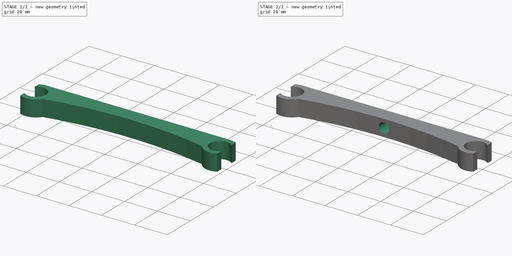
[diagram: build sequence overview — one tinted view per stage of 2, left to right]
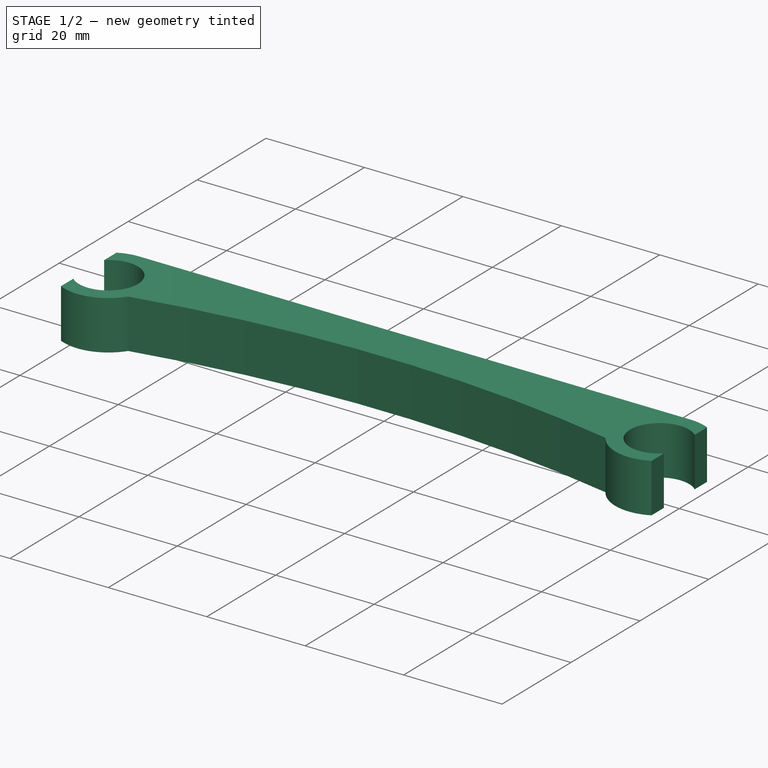
[diagram: stage 1 of 2 — iso view after this stage's code; geometry added in this stage tinted green]
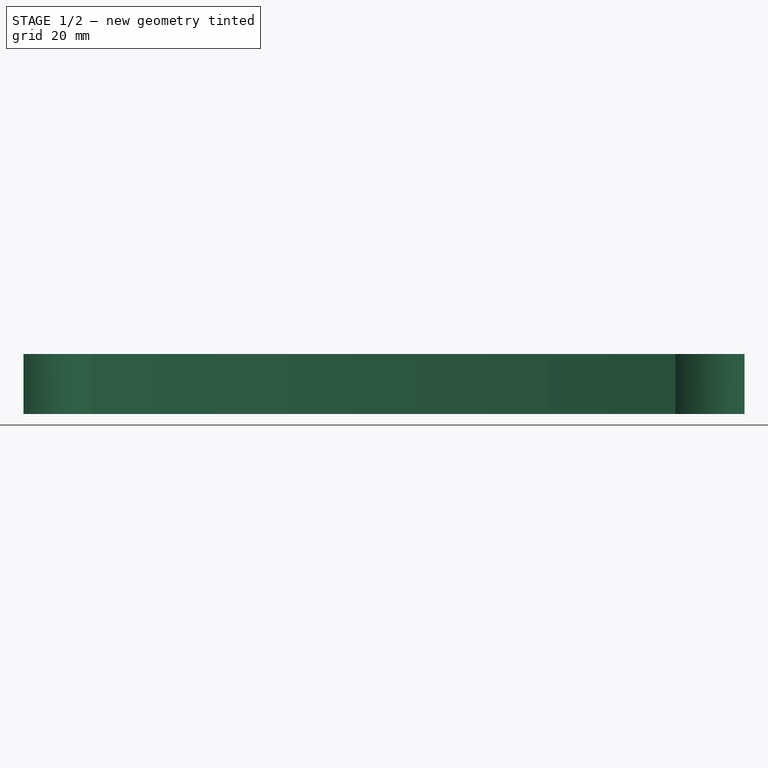
[diagram: stage 1 of 2 — front view after this stage's code; geometry added in this stage tinted green]
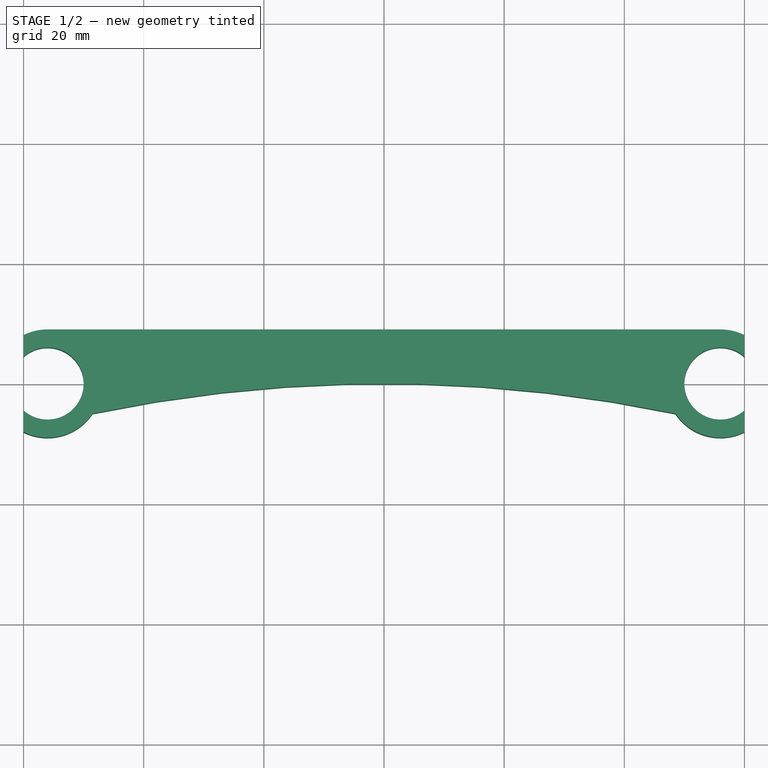
[diagram: stage 1 of 2 — top view after this stage's code; geometry added in this stage tinted green]
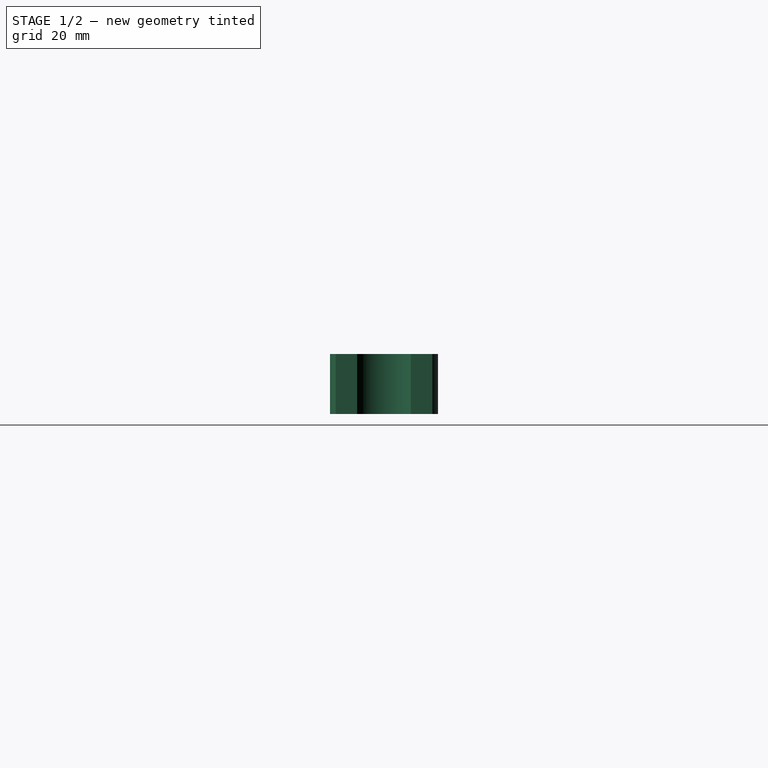
[diagram: stage 1 of 2 — right view after this stage's code; geometry added in this stage tinted green]
FCSTD DOCUMENT  (FreeCAD 2023.131R26244 +5365 (Git))
Label: Bike Thing
License: All rights reserved
LicenseURL: http://en.wikipedia.org/wiki/All_rights_reserved
objects: Sketcher::SketchObject×2, PartDesign::Pad×1, PartDesign::Pocket×1, PartDesign::Body×1
note: 11 computed .brp shape members not serialized (recipe doc carries the construction recipe); baked Part::Feature solids carry a one-line shape summary decoded from their .brp

FEATURE [Sketcher::SketchObject] Sketch
  ArcFitTolerance = 1e-06
  AttachmentSupport = -> [XY_Plane]
  ExternalBSplineMaxDegree = 5
  ExternalBSplineTolerance = 0.0001
  FullyConstrained = false
  InternalTolerance = 1e-06
  InvalidShape = false
  MakeInternals = false
  MapMode = 5
  Support = -> [XY_Plane]
  TreeRank = 11
  ValidateShape = true
  sketch-geometry (20):
    g0: ArcOfCircle CenterX=-56 CenterY=0 CenterZ=0 NormalX=0 NormalY=0 NormalZ=1 AngleXU=0 Radius=6 StartAngle=3.98266 EndAngle=8.58371
    g1: ArcOfCircle CenterX=56 CenterY=0 CenterZ=0 NormalX=0 NormalY=0 NormalZ=1 AngleXU=0 Radius=6 StartAngle=0.841069 EndAngle=5.44212
    g2: ArcOfCircle CenterX=-56 CenterY=0 CenterZ=0 NormalX=0 NormalY=0 NormalZ=1 AngleXU=0 Radius=9 StartAngle=1.55423 EndAngle=2.03135
    g3: ArcOfCircle CenterX=56 CenterY=0 CenterZ=0 NormalX=0 NormalY=0 NormalZ=1 AngleXU=0 Radius=9 StartAngle=3.73062 EndAngle=5.17294
    g4: LineSegment StartX=-55.8509 StartY=8.99877 StartZ=0 EndX=56.1491 EndY=8.99877 EndZ=0
    g5: ArcOfCircle CenterX=1.23e-14 CenterY=-237.887 CenterZ=0 NormalX=0 NormalY=0 NormalZ=1 AngleXU=0 Radius=237.887 StartAngle=1.36541 EndAngle=1.77619
    g6: GeomPoint [constr] X=-60 Y=-4.47214 Z=0
    g7: GeomPoint [constr] X=60 Y=-4.47214 Z=0
    g8: GeomPoint [constr] X=-60 Y=4.47214 Z=0
    g9: GeomPoint [constr] X=-60 Y=8.06226 Z=0
    g10: GeomPoint [constr] X=-60 Y=-8.06226 Z=0
    g11: LineSegment StartX=-60 StartY=8.06226 StartZ=0 EndX=-60 EndY=4.47214 EndZ=0
    g12: LineSegment StartX=-60 StartY=-4.47214 StartZ=0 EndX=-60 EndY=-8.06226 EndZ=0
    g13: ArcOfCircle CenterX=-56 CenterY=0 CenterZ=0 NormalX=0 NormalY=0 NormalZ=1 AngleXU=0 Radius=9 StartAngle=4.25183 EndAngle=5.69415
    g14: GeomPoint [constr] X=60 Y=-8.06226 Z=0
    g15: GeomPoint [constr] X=60 Y=4.47214 Z=0
    g16: GeomPoint [constr] X=60 Y=8.06226 Z=0
    g17: LineSegment StartX=60 StartY=8.06226 StartZ=0 EndX=60 EndY=4.47214 EndZ=0
    g18: LineSegment StartX=60 StartY=-4.47214 StartZ=0 EndX=60 EndY=-8.06226 EndZ=0
    g19: ArcOfCircle CenterX=56 CenterY=0 CenterZ=0 NormalX=0 NormalY=0 NormalZ=1 AngleXU=0 Radius=9 StartAngle=1.11024 EndAngle=1.55423
  constraints (50):
    c: PointOnObject(g0,g-1)
    c: PointOnObject(g1,g-1)
    c: Equal(g0,g1)
    c: Diameter(g0) = 12
    c: DistanceX(g0,g-1) = 56
    c: DistanceX(g-1,g1) = 56
    c: Coincident(g2,g0)
    c: Coincident(g3,g1)
    c: Equal(g2,g3)
    c: Diameter(g2) = 18
    c: Horizontal(g4)
    c: PointOnObject(g4,g3)
    c: PointOnObject(g-1,g5)
    c: DistanceY(g5,g-1) = 5
    c: DistanceY(g5,g-1) = 5
    c: PointOnObject(g9,g2)
    c: PointOnObject(g10,g2)
    c: DistanceX(g6,g-1) = 60
    c: DistanceX(g10,g-1) = 60
    c: DistanceX(g8,g-1) = 60
    c: DistanceX(g9,g-1) = 60
    c: Coincident(g11,g9)
    c: Coincident(g11,g8)
    c: Coincident(g12,g6)
    c: Coincident(g12,g10)
    c: Coincident(g13,g5)
    c: Equal(g2,g13)
    c: PointOnObject(g2,g11)
    c: PointOnObject(g13,g12)
    c: Coincident(g2,g13)
    c: Coincident(g0,g11)
    c: Coincident(g0,g12)
    c: PointOnObject(g14,g3)
    c: PointOnObject(g16,g3)
    c: DistanceX(g-1,g14) = 60
    c: DistanceX(g-1,g7) = 60
    c: DistanceX(g-1,g15) = 60
    c: DistanceX(g-1,g16) = 60
    c: Coincident(g17,g16)
    c: Coincident(g17,g15)
    c: Coincident(g18,g7)
    c: Coincident(g18,g14)
    c: Coincident(g3,g5)
    c: PointOnObject(g3,g18)
    c: PointOnObject(g19,g17)
    c: Coincident(g3,g19)
    c: Coincident(g1,g18)
    c: Coincident(g1,g17)
    c: Coincident(g2,g4)
    c: Coincident(g19,g4)
FEATURE [PartDesign::Pad] Pad
  AddSubType = 0
  AlongSketchNormal = false
  AutoTaperInnerAngle = true
  CheckUpToFaceLimits = true
  ClaimChildren = false
  Direction = (0,0,1)
  Fit = 0
  FitJoin = 0
  InnerFit = 0
  InnerFitJoin = 0
  InvalidShape = false
  Length = 10
  Length2 = 100
  Linearize = true
  NewSolid = false
  Profile = -> Sketch
  Suppress = false
  TaperInnerAngle = 0
  TaperInnerAngleRev = 0
  TreeRank = 12
  Type = 0
  ValidateShape = true
  _ProfileBasedVersion = 1
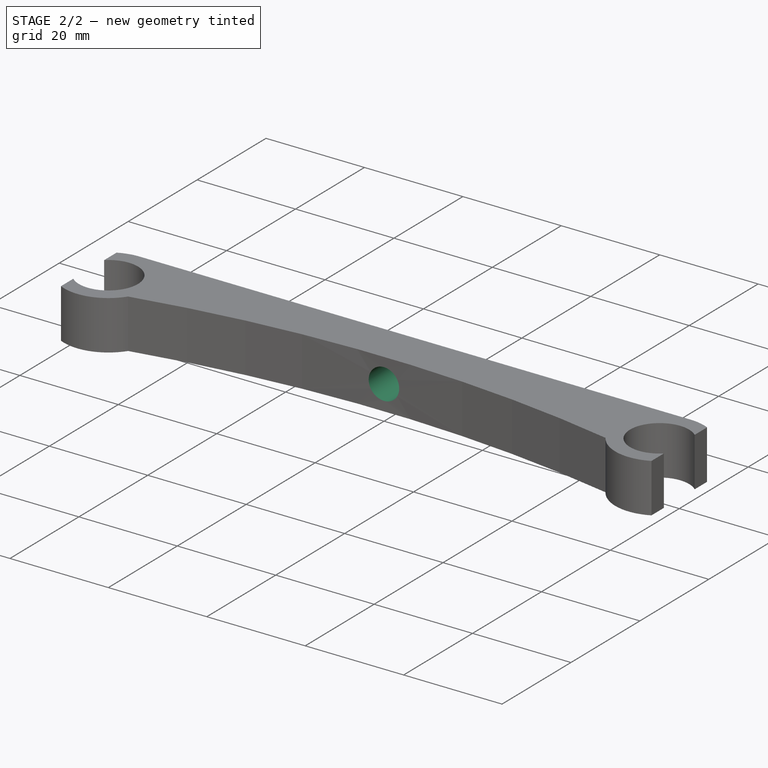
[diagram: stage 2 of 2 — iso view after this stage's code; geometry added in this stage tinted green]
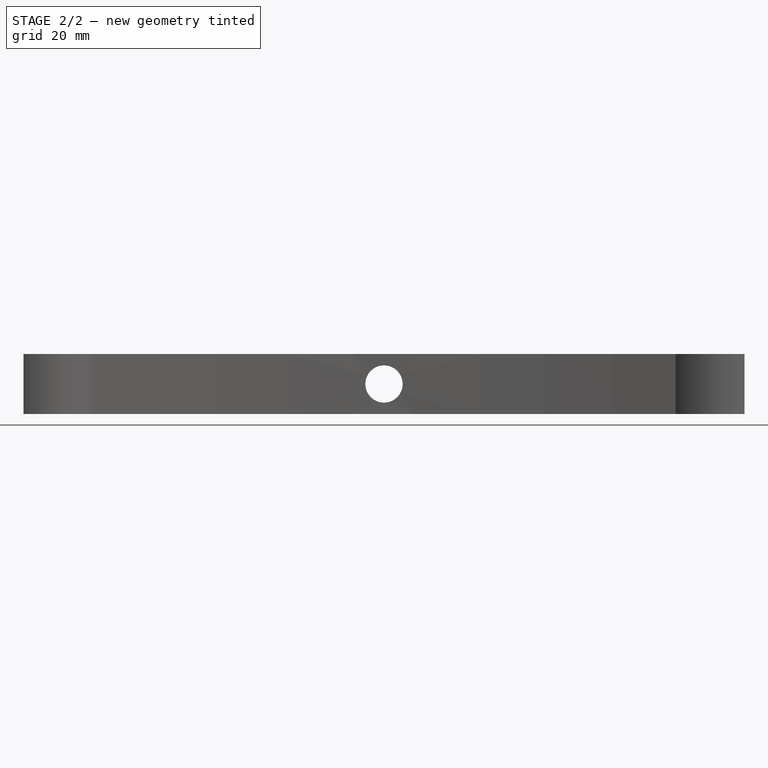
[diagram: stage 2 of 2 — front view after this stage's code; geometry added in this stage tinted green]
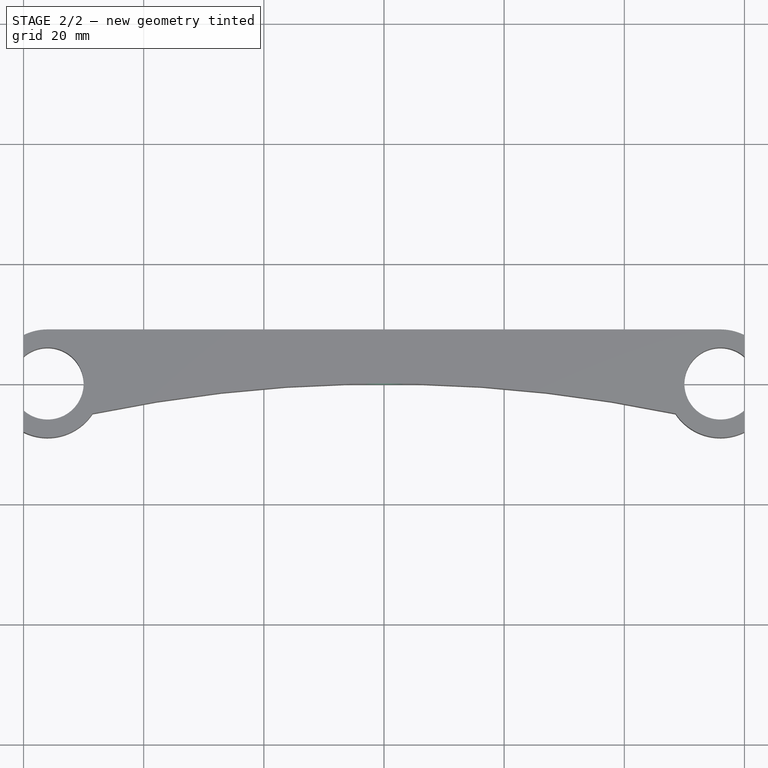
[diagram: stage 2 of 2 — top view after this stage's code; geometry added in this stage tinted green]
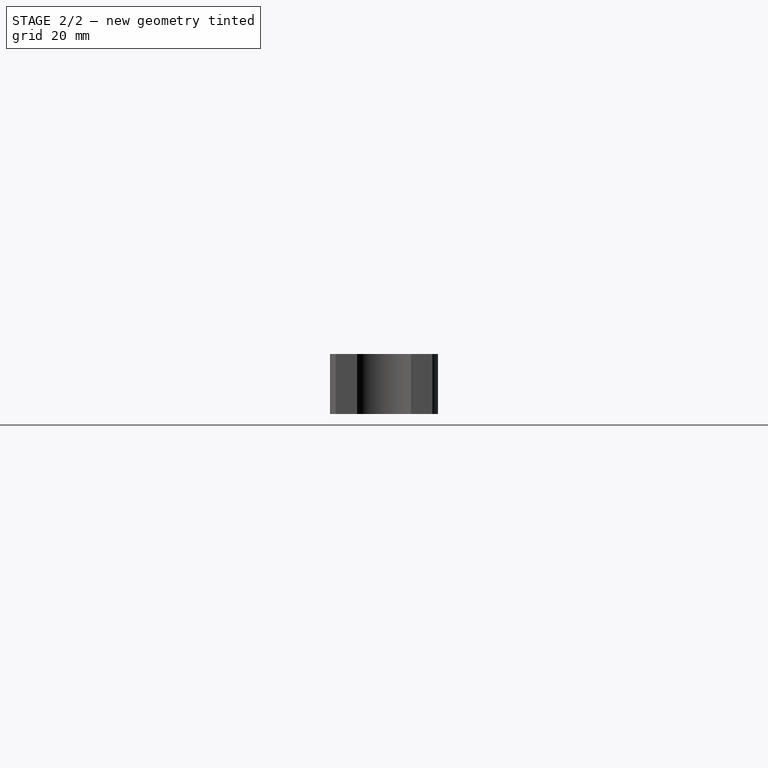
[diagram: stage 2 of 2 — right view after this stage's code; geometry added in this stage tinted green]
FEATURE [Sketcher::SketchObject] Sketch001
  ArcFitTolerance = 1e-06
  AttachmentSupport = -> [Pad]
  ExternalBSplineMaxDegree = 5
  ExternalBSplineTolerance = 0.0001
  FullyConstrained = true
  InternalTolerance = 1e-06
  InvalidShape = false
  MakeInternals = false
  MapMode = 5
  Placement = pos=(0,8.99877,0) rot=(0,0.707107,0.707107;3.14159rad)
  Support = -> [Pad]
  TreeRank = 13
  ValidateShape = true
  expr: Constraints[2] = (10 - 6.2) / 2 + 3.1
  sketch-geometry (1):
    g0: Circle CenterX=0 CenterY=5 CenterZ=0 NormalX=0 NormalY=0 NormalZ=1 AngleXU=0 Radius=3.1
  constraints (3):
    c: PointOnObject(g0,g-2)
    c: Diameter(g0) = 6.2
    c: DistanceY(g-1,g0) = 5
FEATURE [PartDesign::Pocket] Pocket
  AddSubType = 1
  AutoTaperInnerAngle = true
  BaseFeature = -> Pad
  CheckUpToFaceLimits = true
  ClaimChildren = false
  Fit = 0
  FitJoin = 0
  InnerFit = 0
  InnerFitJoin = 0
  InvalidShape = false
  Length = 5
  Length2 = 100
  Linearize = true
  NewSolid = false
  Profile = -> Sketch001
  Suppress = false
  TaperInnerAngle = 0
  TaperInnerAngleRev = 0
  TreeRank = 14
  Type = 1
  ValidateShape = true
  _ProfileBasedVersion = 1
  _Version = 1
FEATURE [PartDesign::Body] Body
  AutoGroupSolids = false
  ClaimAllChildren = false
  ExportMode = 0
  Group = -> [Sketch,Pad,Sketch001,Pocket]
  InvalidShape = false
  Origin = -> Origin
  Tip = -> Pocket
  TreeRank = 10
  ValidateShape = true
  _ExportChildren = -> [Pad,Pocket]
  _GroupVersion = 1
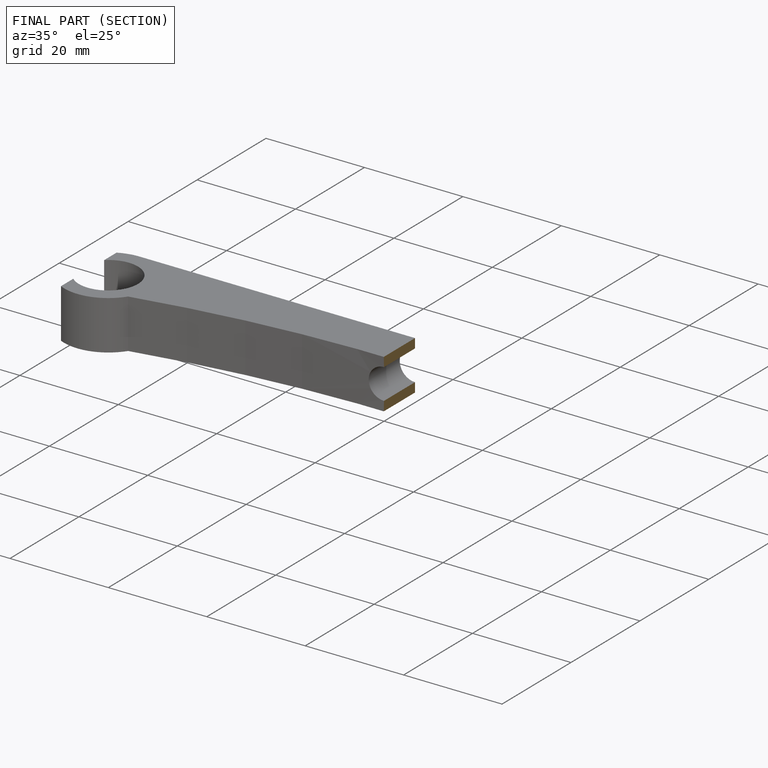
[diagram: finished part — half-section view (interior)]
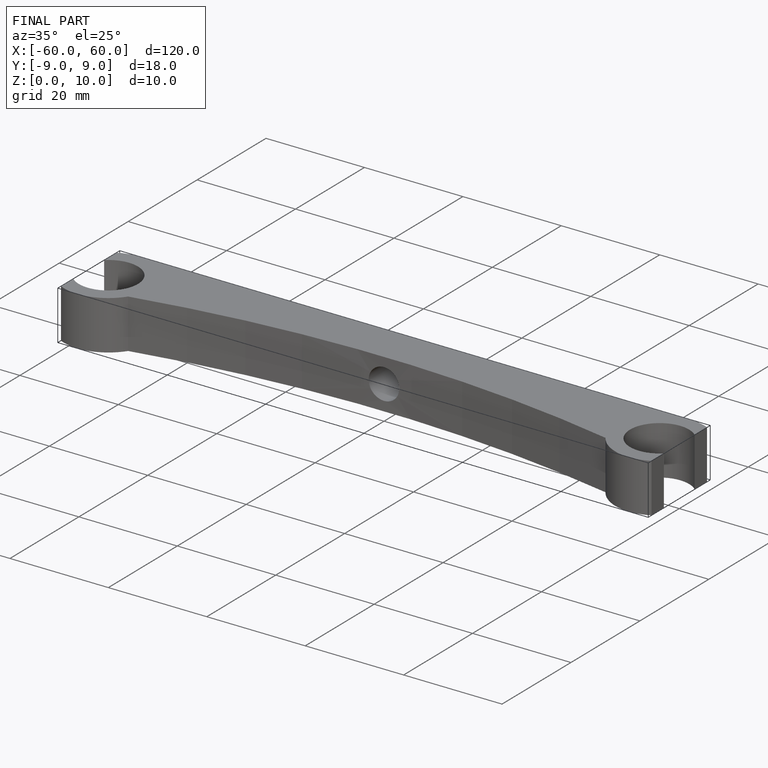
[diagram: finished part — iso view with bounding-box wireframe]
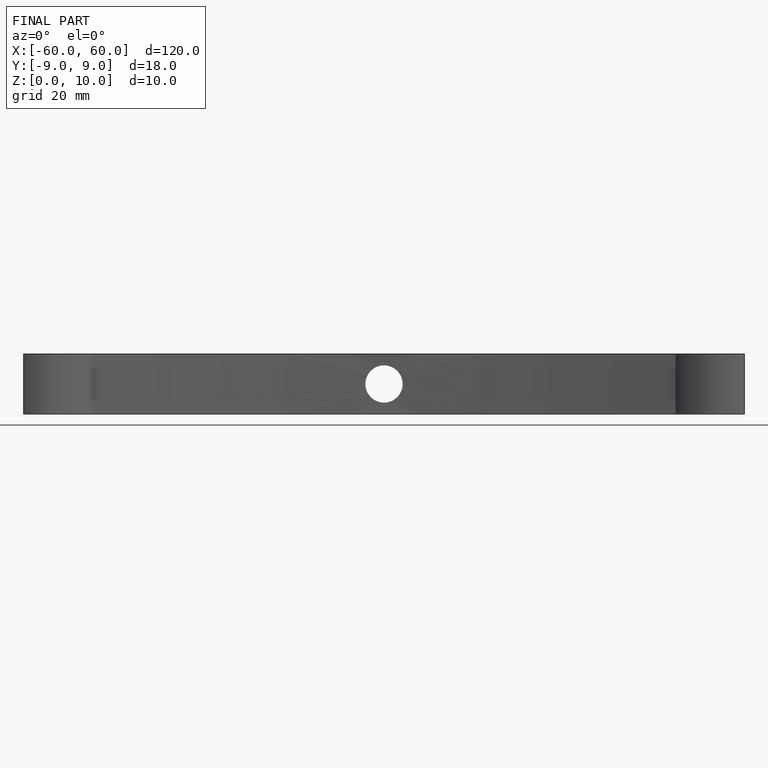
[diagram: finished part — front view with bounding-box wireframe]
